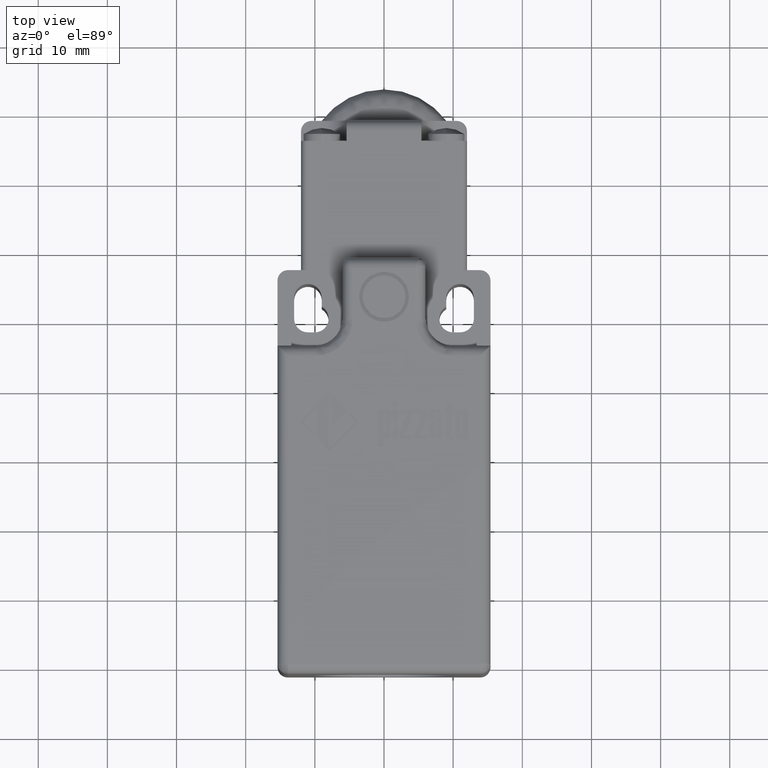
[diagram: clean part render]
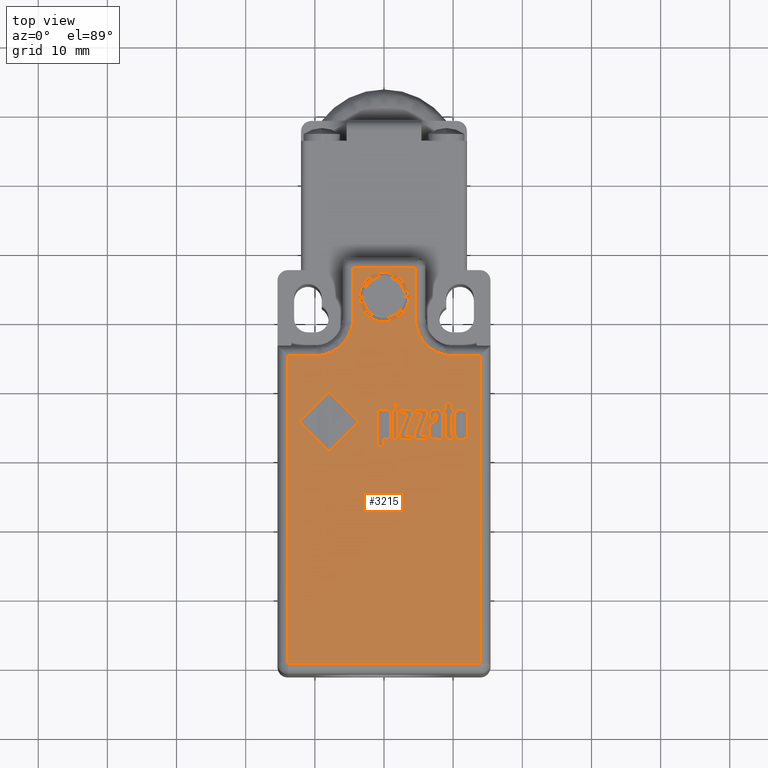
[diagram: same view with one face highlighted and labeled with its STEP entity id]
A machine part, top view. The second image highlights one B-rep face of the part: STEP entity #3215.
In plain terms, the highlighted planar face has unit normal (0, 0, -1).
Its self-contained STEP definition (entity closure, byte-faithful):
#270=CARTESIAN_POINT('',(-3.600000000000000,2.999999999999996,18.600000000000001));
#271=VERTEX_POINT('',#270);
#278=CARTESIAN_POINT('',(3.600000000000000,2.999999999999996,18.600000000000001));
#279=VERTEX_POINT('',#278);
#280=CARTESIAN_POINT('',(0.0,2.999999999999996,18.600000000000001));
#281=DIRECTION('',(0.0,0.0,1.0));
#282=DIRECTION('',(1.0,0.0,0.0));
#283=AXIS2_PLACEMENT_3D('',#280,#281,#282);
#284=CIRCLE('',#283,3.600000000000000);
#285=EDGE_CURVE('',#271,#279,#284,.T.);
#2434=CARTESIAN_POINT('',(15.290000000000006,-52.860000000000014,18.600000000000001));
#2435=DIRECTION('',(0.0,0.0,-1.0));
#2436=DIRECTION('',(-1.0,0.0,0.0));
#2437=AXIS2_PLACEMENT_3D('',#2434,#2435,#2436);
#2438=PLANE('',#2437);
#2439=CARTESIAN_POINT('',(4.500000000000006,7.199999999999998,18.599999999999998));
#2440=VERTEX_POINT('',#2439);
#2441=CARTESIAN_POINT('',(4.500000000000005,3.469447E-015,18.600000000000001));
#2442=VERTEX_POINT('',#2441);
#2443=CARTESIAN_POINT('',(4.500000000000005,7.199999999999996,18.600000000000001));
#2444=DIRECTION('',(0.0,-1.0,0.0));
#2445=VECTOR('',#2444,7.199999999999992);
#2446=LINE('',#2443,#2445);
#2447=EDGE_CURVE('',#2440,#2442,#2446,.T.);
#2448=ORIENTED_EDGE('',*,*,#2447,.F.);
#2449=CARTESIAN_POINT('',(-4.500000000000006,7.199999999999998,18.599999999999998));
#2450=VERTEX_POINT('',#2449);
#2451=CARTESIAN_POINT('',(4.500000000000009,7.200000000000005,18.600000000000001));
#2452=DIRECTION('',(-1.0,0.0,0.0));
#2453=VECTOR('',#2452,9.000000000000014);
#2454=LINE('',#2451,#2453);
#2455=EDGE_CURVE('',#2440,#2450,#2454,.T.);
#2456=ORIENTED_EDGE('',*,*,#2455,.T.);
#2457=CARTESIAN_POINT('',(-4.500000000000005,3.469447E-015,18.600000000000001));
#2458=VERTEX_POINT('',#2457);
#2459=CARTESIAN_POINT('',(-4.500000000000005,7.199999999999996,18.600000000000001));
#2460=DIRECTION('',(0.0,-1.0,0.0));
#2461=VECTOR('',#2460,7.199999999999992);
#2462=LINE('',#2459,#2461);
#2463=EDGE_CURVE('',#2450,#2458,#2462,.T.);
#2464=ORIENTED_EDGE('',*,*,#2463,.T.);
#2465=CARTESIAN_POINT('',(-10.000000000000007,-5.500000000000000,18.600000000000001));
#2466=VERTEX_POINT('',#2465);
#2467=CARTESIAN_POINT('',(-10.000000000000007,3.469447E-015,18.600000000000001));
#2468=DIRECTION('',(0.0,0.0,-1.0));
#2469=DIRECTION('',(-1.0,0.0,0.0));
#2470=AXIS2_PLACEMENT_3D('',#2467,#2468,#2469);
#2471=CIRCLE('',#2470,5.500000000000004);
#2472=EDGE_CURVE('',#2458,#2466,#2471,.T.);
#2473=ORIENTED_EDGE('',*,*,#2472,.T.);
#2474=CARTESIAN_POINT('',(-13.900000000000006,-5.500000000000000,18.600000000000001));
#2475=VERTEX_POINT('',#2474);
#2476=CARTESIAN_POINT('',(-10.000000000000007,-5.499999999999998,18.600000000000001));
#2477=DIRECTION('',(-1.0,0.0,0.0));
#2478=VECTOR('',#2477,3.899999999999999);
#2479=LINE('',#2476,#2478);
#2480=EDGE_CURVE('',#2466,#2475,#2479,.T.);
#2481=ORIENTED_EDGE('',*,*,#2480,.T.);
#2482=CARTESIAN_POINT('',(-13.900000000000006,-50.000000000000014,18.600000000000001));
#2483=VERTEX_POINT('',#2482);
#2484=CARTESIAN_POINT('',(-13.900000000000006,-5.500000000000000,18.600000000000001));
#2485=DIRECTION('',(0.0,-1.0,0.0));
#2486=VECTOR('',#2485,44.500000000000014);
#2487=LINE('',#2484,#2486);
#2488=EDGE_CURVE('',#2475,#2483,#2487,.T.);
#2489=ORIENTED_EDGE('',*,*,#2488,.T.);
#2490=CARTESIAN_POINT('',(13.900000000000006,-50.000000000000014,18.600000000000001));
#2491=VERTEX_POINT('',#2490);
#2492=CARTESIAN_POINT('',(-13.900000000000006,-50.000000000000014,18.600000000000001));
#2493=DIRECTION('',(1.0,0.0,0.0));
#2494=VECTOR('',#2493,27.800000000000011);
#2495=LINE('',#2492,#2494);
#2496=EDGE_CURVE('',#2483,#2491,#2495,.T.);
#2497=ORIENTED_EDGE('',*,*,#2496,.T.);
#2498=CARTESIAN_POINT('',(13.900000000000006,-5.500000000000000,18.600000000000001));
#2499=VERTEX_POINT('',#2498);
#2500=CARTESIAN_POINT('',(13.900000000000006,-5.500000000000000,18.600000000000001));
#2501=DIRECTION('',(0.0,-1.0,0.0));
#2502=VECTOR('',#2501,44.500000000000014);
#2503=LINE('',#2500,#2502);
#2504=EDGE_CURVE('',#2499,#2491,#2503,.T.);
#2505=ORIENTED_EDGE('',*,*,#2504,.F.);
#2506=CARTESIAN_POINT('',(10.000000000000007,-5.500000000000000,18.600000000000001));
#2507=VERTEX_POINT('',#2506);
#2508=CARTESIAN_POINT('',(10.000000000000007,-5.499999999999998,18.600000000000001));
#2509=DIRECTION('',(1.0,0.0,0.0));
#2510=VECTOR('',#2509,3.899999999999999);
#2511=LINE('',#2508,#2510);
#2512=EDGE_CURVE('',#2507,#2499,#2511,.T.);
#2513=ORIENTED_EDGE('',*,*,#2512,.F.);
#2514=CARTESIAN_POINT('',(10.000000000000007,3.469447E-015,18.600000000000001));
#2515=DIRECTION('',(0.0,0.0,1.0));
#2516=DIRECTION('',(1.0,0.0,0.0));
#2517=AXIS2_PLACEMENT_3D('',#2514,#2515,#2516);
#2518=CIRCLE('',#2517,5.500000000000004);
#2519=EDGE_CURVE('',#2442,#2507,#2518,.T.);
#2520=ORIENTED_EDGE('',*,*,#2519,.F.);
#2521=EDGE_LOOP('',(#2448,#2456,#2464,#2473,#2481,#2489,#2497,#2505,#2513,#2520));
#2522=FACE_OUTER_BOUND('',#2521,.T.);
#2523=CARTESIAN_POINT('',(8.928889482346673,-13.275073119551740,18.600000000000001));
#2524=VERTEX_POINT('',#2523);
#2525=CARTESIAN_POINT('',(8.645105698562890,-13.275073119551740,18.600000000000001));
#2526=VERTEX_POINT('',#2525);
#2527=CARTESIAN_POINT('',(8.928889482346673,-13.275073119551740,18.600000000000001));
#2528=DIRECTION('',(-1.0,0.0,0.0));
#2529=VECTOR('',#2528,0.283783783783782);
#2530=LINE('',#2527,#2529);
#2531=EDGE_CURVE('',#2524,#2526,#2530,.T.);
#2532=ORIENTED_EDGE('',*,*,#2531,.F.);
#2533=CARTESIAN_POINT('',(8.928889482346673,-12.221019065497680,18.600000000000001));
#2534=VERTEX_POINT('',#2533);
#2535=CARTESIAN_POINT('',(8.928889482346673,-12.221019065497680,18.600000000000001));
#2536=DIRECTION('',(0.0,-1.0,0.0));
#2537=VECTOR('',#2536,1.054054054054060);
#2538=LINE('',#2535,#2537);
#2539=EDGE_CURVE('',#2534,#2524,#2538,.T.);
#2540=ORIENTED_EDGE('',*,*,#2539,.F.);
#2541=CARTESIAN_POINT('',(9.739700293157492,-12.221019065497680,18.600000000000001));
#2542=VERTEX_POINT('',#2541);
#2543=CARTESIAN_POINT('',(9.739700293157492,-12.221019065497680,18.600000000000001));
#2544=DIRECTION('',(-1.0,0.0,0.0));
#2545=VECTOR('',#2544,0.810810810810819);
#2546=LINE('',#2543,#2545);
#2547=EDGE_CURVE('',#2542,#2534,#2546,.T.);
#2548=ORIENTED_EDGE('',*,*,#2547,.F.);
#2549=CARTESIAN_POINT('',(9.739700293157487,-13.275073119551740,18.600000000000001));
#2550=VERTEX_POINT('',#2549);
#2551=CARTESIAN_POINT('',(9.739700293157492,-13.275073119551740,18.600000000000001));
#2552=DIRECTION('',(0.0,1.0,0.0));
#2553=VECTOR('',#2552,1.054054054054060);
#2554=LINE('',#2551,#2553);
#2555=EDGE_CURVE('',#2550,#2542,#2554,.T.);
#2556=ORIENTED_EDGE('',*,*,#2555,.F.);
#2557=CARTESIAN_POINT('',(10.023484076941276,-13.275073119551740,18.600000000000001));
#2558=VERTEX_POINT('',#2557);
#2559=CARTESIAN_POINT('',(10.023484076941276,-13.275073119551740,18.600000000000001));
#2560=DIRECTION('',(-1.0,0.0,0.0));
#2561=VECTOR('',#2560,0.283783783783790);
#2562=LINE('',#2559,#2561);
#2563=EDGE_CURVE('',#2558,#2550,#2562,.T.);
#2564=ORIENTED_EDGE('',*,*,#2563,.F.);
#2565=CARTESIAN_POINT('',(10.023484076941276,-13.923721768200386,18.600000000000001));
#2566=VERTEX_POINT('',#2565);
#2567=CARTESIAN_POINT('',(10.023484076941276,-13.923721768200386,18.600000000000001));
#2568=DIRECTION('',(0.0,1.0,0.0));
#2569=VECTOR('',#2568,0.648648648648646);
#2570=LINE('',#2567,#2569);
#2571=EDGE_CURVE('',#2566,#2558,#2570,.T.);
#2572=ORIENTED_EDGE('',*,*,#2571,.F.);
#2573=CARTESIAN_POINT('',(9.739700293157492,-13.923721768200386,18.600000000000001));
#2574=VERTEX_POINT('',#2573);
#2575=CARTESIAN_POINT('',(9.739700293157492,-13.923721768200386,18.600000000000001));
#2576=DIRECTION('',(1.0,0.0,0.0));
#2577=VECTOR('',#2576,0.283783783783784);
#2578=LINE('',#2575,#2577);
#2579=EDGE_CURVE('',#2574,#2566,#2578,.T.);
#2580=ORIENTED_EDGE('',*,*,#2579,.F.);
#2581=CARTESIAN_POINT('',(9.739700293157492,-17.004802849281468,18.600000000000001));
#2582=VERTEX_POINT('',#2581);
#2583=CARTESIAN_POINT('',(9.739700293157492,-17.004802849281468,18.600000000000001));
#2584=DIRECTION('',(0.0,1.0,0.0));
#2585=VECTOR('',#2584,3.081081081081083);
#2586=LINE('',#2583,#2585);
#2587=EDGE_CURVE('',#2582,#2574,#2586,.T.);
#2588=ORIENTED_EDGE('',*,*,#2587,.F.);
#2589=CARTESIAN_POINT('',(10.023484076941276,-17.004802849281468,18.600000000000001));
#2590=VERTEX_POINT('',#2589);
#2591=CARTESIAN_POINT('',(10.023484076941276,-17.004802849281468,18.600000000000001));
#2592=DIRECTION('',(-1.0,0.0,0.0));
#2593=VECTOR('',#2592,0.283783783783784);
#2594=LINE('',#2591,#2593);
#2595=EDGE_CURVE('',#2590,#2582,#2594,.T.);
#2596=ORIENTED_EDGE('',*,*,#2595,.F.);
#2597=CARTESIAN_POINT('',(10.023484076941276,-17.572370416848987,18.600000000000001));
#2598=VERTEX_POINT('',#2597);
#2599=CARTESIAN_POINT('',(10.023484076941276,-17.572370416848987,18.600000000000001));
#2600=DIRECTION('',(0.0,1.0,0.0));
#2601=VECTOR('',#2600,0.567567567567519);
#2602=LINE('',#2599,#2601);
#2603=EDGE_CURVE('',#2598,#2590,#2602,.T.);
#2604=ORIENTED_EDGE('',*,*,#2603,.F.);
#2605=CARTESIAN_POINT('',(9.415375968833171,-17.572370416849001,18.600000000000001));
#2606=VERTEX_POINT('',#2605);
#2607=CARTESIAN_POINT('',(9.415375968833171,-17.572370416849001,18.600000000000001));
#2608=DIRECTION('',(1.0,0.0,0.0));
#2609=VECTOR('',#2608,0.608108108108105);
#2610=LINE('',#2607,#2609);
#2611=EDGE_CURVE('',#2606,#2598,#2610,.T.);
#2612=ORIENTED_EDGE('',*,*,#2611,.F.);
#2613=CARTESIAN_POINT('',(8.928889482346682,-17.085883930362513,18.600000000000001));
#2614=VERTEX_POINT('',#2613);
#2615=CARTESIAN_POINT('',(9.415375968833166,-17.085883930362534,18.600000000000001));
#2616=DIRECTION('',(0.0,0.0,1.0));
#2617=DIRECTION('',(1.0,0.0,0.0));
#2618=AXIS2_PLACEMENT_3D('',#2615,#2616,#2617);
#2619=CIRCLE('',#2618,0.486486486486479);
#2620=EDGE_CURVE('',#2614,#2606,#2619,.T.);
#2621=ORIENTED_EDGE('',*,*,#2620,.F.);
#2622=CARTESIAN_POINT('',(8.928889482346673,-13.923721768200386,18.600000000000001));
#2623=VERTEX_POINT('',#2622);
#2624=CARTESIAN_POINT('',(8.928889482346673,-13.923721768200386,18.600000000000001));
#2625=DIRECTION('',(0.0,-1.0,0.0));
#2626=VECTOR('',#2625,3.162162162162128);
#2627=LINE('',#2624,#2626);
#2628=EDGE_CURVE('',#2623,#2614,#2627,.T.);
#2629=ORIENTED_EDGE('',*,*,#2628,.F.);
#2630=CARTESIAN_POINT('',(8.645105698562890,-13.923721768200386,18.600000000000001));
#2631=VERTEX_POINT('',#2630);
#2632=CARTESIAN_POINT('',(8.645105698562890,-13.923721768200386,18.600000000000001));
#2633=DIRECTION('',(1.0,0.0,0.0));
#2634=VECTOR('',#2633,0.283783783783782);
#2635=LINE('',#2632,#2634);
#2636=EDGE_CURVE('',#2631,#2623,#2635,.T.);
#2637=ORIENTED_EDGE('',*,*,#2636,.F.);
#2638=CARTESIAN_POINT('',(8.645105698562890,-13.275073119551740,18.600000000000001));
#2639=DIRECTION('',(0.0,-1.0,0.0));
#2640=VECTOR('',#2639,0.648648648648646);
#2641=LINE('',#2638,#2640);
#2642=EDGE_CURVE('',#2526,#2631,#2641,.T.);
#2643=ORIENTED_EDGE('',*,*,#2642,.F.);
#2644=EDGE_LOOP('',(#2532,#2540,#2548,#2556,#2564,#2572,#2580,#2588,#2596,#2604,#2612,#2621,#2629,#2637,#2643));
#2645=FACE_BOUND('',#2644,.T.);
#2646=CARTESIAN_POINT('',(7.537251273740965,-17.506510332938422,18.600000000000001));
#2647=VERTEX_POINT('',#2646);
#2648=CARTESIAN_POINT('',(7.639700293157486,-17.572370416849044,18.600000000000001));
#2649=VERTEX_POINT('',#2648);
#2650=CARTESIAN_POINT('',(7.567306470763668,-17.572370416849044,18.600000000000001));
#2651=DIRECTION('',(0.0,0.0,-1.0));
#2652=DIRECTION('',(1.0,0.0,0.0));
#2653=AXIS2_PLACEMENT_3D('',#2650,#2651,#2652);
#2654=CIRCLE('',#2653,0.072393822393818);
#2655=EDGE_CURVE('',#2647,#2649,#2654,.T.);
#2656=ORIENTED_EDGE('',*,*,#2655,.F.);
#2657=CARTESIAN_POINT('',(6.504565158022350,-16.842640687119324,18.600000000000001));
#2658=VERTEX_POINT('',#2657);
#2659=CARTESIAN_POINT('',(7.234294887752083,-16.842640687119324,18.600000000000001));
#2660=DIRECTION('',(0.0,0.0,1.0));
#2661=DIRECTION('',(1.0,0.0,0.0));
#2662=AXIS2_PLACEMENT_3D('',#2659,#2660,#2661);
#2663=CIRCLE('',#2662,0.729729729729729);
#2664=EDGE_CURVE('',#2658,#2647,#2663,.T.);
#2665=ORIENTED_EDGE('',*,*,#2664,.F.);
#2666=CARTESIAN_POINT('',(6.504565158022350,-15.607932052762930,18.600000000000001));
#2667=VERTEX_POINT('',#2666);
#2668=CARTESIAN_POINT('',(6.504565158022350,-15.607932052762930,18.600000000000001));
#2669=DIRECTION('',(0.0,-1.0,0.0));
#2670=VECTOR('',#2669,1.234708634356394);
#2671=LINE('',#2668,#2670);
#2672=EDGE_CURVE('',#2667,#2658,#2671,.T.);
#2673=ORIENTED_EDGE('',*,*,#2672,.F.);
#2674=CARTESIAN_POINT('',(6.555495647975434,-15.508964468426978,18.600000000000001));
#2675=VERTEX_POINT('',#2674);
#2676=CARTESIAN_POINT('',(6.626186779643975,-15.607932052762930,18.600000000000001));
#2677=DIRECTION('',(0.0,0.0,1.0));
#2678=DIRECTION('',(1.0,0.0,0.0));
#2679=AXIS2_PLACEMENT_3D('',#2676,#2677,#2678);
#2680=CIRCLE('',#2679,0.121621621621622);
#2681=EDGE_CURVE('',#2675,#2667,#2680,.T.);
#2682=ORIENTED_EDGE('',*,*,#2681,.F.);
#2683=CARTESIAN_POINT('',(7.639700293157486,-14.734532579011198,18.600000000000001));
#2684=VERTEX_POINT('',#2683);
#2685=CARTESIAN_POINT('',(7.639700293157484,-14.734532579011194,18.600000000000001));
#2686=DIRECTION('',(-0.813733471206723,-0.581238193719113,0.0));
#2687=VECTOR('',#2686,1.332383001984953);
#2688=LINE('',#2685,#2687);
#2689=EDGE_CURVE('',#2684,#2675,#2688,.T.);
#2690=ORIENTED_EDGE('',*,*,#2689,.F.);
#2691=CARTESIAN_POINT('',(7.639700293157486,-14.029127173605790,18.600000000000001));
#2692=VERTEX_POINT('',#2691);
#2693=CARTESIAN_POINT('',(7.639700293157486,-14.029127173605790,18.600000000000001));
#2694=DIRECTION('',(0.0,-1.0,0.0));
#2695=VECTOR('',#2694,0.705405405405408);
#2696=LINE('',#2693,#2695);
#2697=EDGE_CURVE('',#2692,#2684,#2696,.T.);
#2698=ORIENTED_EDGE('',*,*,#2697,.F.);
#2699=CARTESIAN_POINT('',(7.518078671535866,-13.907505551984169,18.600000000000001));
#2700=VERTEX_POINT('',#2699);
#2701=CARTESIAN_POINT('',(7.518078671535866,-14.029127173605790,18.600000000000001));
#2702=DIRECTION('',(0.0,0.0,-1.0));
#2703=DIRECTION('',(1.0,0.0,0.0));
#2704=AXIS2_PLACEMENT_3D('',#2701,#2702,#2703);
#2705=CIRCLE('',#2704,0.121621621621622);
#2706=EDGE_CURVE('',#2700,#2692,#2705,.T.);
#2707=ORIENTED_EDGE('',*,*,#2706,.F.);
#2708=CARTESIAN_POINT('',(7.436997590454785,-13.907505551984169,18.600000000000001));
#2709=VERTEX_POINT('',#2708);
#2710=CARTESIAN_POINT('',(7.436997590454785,-13.907505551984169,18.600000000000001));
#2711=DIRECTION('',(1.0,0.0,0.0));
#2712=VECTOR('',#2711,0.081081081081082);
#2713=LINE('',#2710,#2712);
#2714=EDGE_CURVE('',#2709,#2700,#2713,.T.);
#2715=ORIENTED_EDGE('',*,*,#2714,.F.);
#2716=CARTESIAN_POINT('',(7.315375968833163,-14.029127173605790,18.600000000000001));
#2717=VERTEX_POINT('',#2716);
#2718=CARTESIAN_POINT('',(7.436997590454785,-14.029127173605790,18.600000000000001));
#2719=DIRECTION('',(0.0,0.0,-1.0));
#2720=DIRECTION('',(1.0,0.0,0.0));
#2721=AXIS2_PLACEMENT_3D('',#2718,#2719,#2720);
#2722=CIRCLE('',#2721,0.121621621621621);
#2723=EDGE_CURVE('',#2717,#2709,#2722,.T.);
#2724=ORIENTED_EDGE('',*,*,#2723,.F.);
#2725=CARTESIAN_POINT('',(7.315375968833163,-14.734532579011198,18.600000000000001));
#2726=VERTEX_POINT('',#2725);
#2727=CARTESIAN_POINT('',(7.315375968833163,-14.734532579011198,18.600000000000001));
#2728=DIRECTION('',(0.0,1.0,0.0));
#2729=VECTOR('',#2728,0.705405405405408);
#2730=LINE('',#2727,#2729);
#2731=EDGE_CURVE('',#2726,#2717,#2730,.T.);
#2732=ORIENTED_EDGE('',*,*,#2731,.F.);
#2733=CARTESIAN_POINT('',(6.504565158022350,-14.734532579011198,18.600000000000001));
#2734=VERTEX_POINT('',#2733);
#2735=CARTESIAN_POINT('',(6.504565158022350,-14.734532579011198,18.600000000000001));
#2736=DIRECTION('',(1.0,0.0,0.0));
#2737=VECTOR('',#2736,0.810810810810813);
#2738=LINE('',#2735,#2737);
#2739=EDGE_CURVE('',#2734,#2726,#2738,.T.);
#2740=ORIENTED_EDGE('',*,*,#2739,.F.);
#2741=CARTESIAN_POINT('',(6.504565158022350,-14.004802849281457,18.600000000000001));
#2742=VERTEX_POINT('',#2741);
#2743=CARTESIAN_POINT('',(6.504565158022350,-14.004802849281457,18.600000000000001));
#2744=DIRECTION('',(0.0,-1.0,0.0));
#2745=VECTOR('',#2744,0.729729729729740);
#2746=LINE('',#2743,#2745);
#2747=EDGE_CURVE('',#2742,#2734,#2746,.T.);
#2748=ORIENTED_EDGE('',*,*,#2747,.F.);
#2749=CARTESIAN_POINT('',(7.234294887752081,-13.275073119551729,18.600000000000001));
#2750=VERTEX_POINT('',#2749);
#2751=CARTESIAN_POINT('',(7.234294887752081,-14.004802849281457,18.600000000000001));
#2752=DIRECTION('',(0.0,0.0,1.0));
#2753=DIRECTION('',(1.0,0.0,0.0));
#2754=AXIS2_PLACEMENT_3D('',#2751,#2752,#2753);
#2755=CIRCLE('',#2754,0.729729729729728);
#2756=EDGE_CURVE('',#2750,#2742,#2755,.T.);
#2757=ORIENTED_EDGE('',*,*,#2756,.F.);
#2758=CARTESIAN_POINT('',(7.720781374238568,-13.275073119551740,18.600000000000001));
#2759=VERTEX_POINT('',#2758);
#2760=CARTESIAN_POINT('',(7.720781374238568,-13.275073119551740,18.600000000000001));
#2761=DIRECTION('',(-1.0,0.0,0.0));
#2762=VECTOR('',#2761,0.486486486486487);
#2763=LINE('',#2760,#2762);
#2764=EDGE_CURVE('',#2759,#2750,#2763,.T.);
#2765=ORIENTED_EDGE('',*,*,#2764,.F.);
#2766=CARTESIAN_POINT('',(8.450511103968296,-14.004802849281457,18.600000000000001));
#2767=VERTEX_POINT('',#2766);
#2768=CARTESIAN_POINT('',(7.720781374238568,-14.004802849281457,18.600000000000001));
#2769=DIRECTION('',(0.0,0.0,1.0));
#2770=DIRECTION('',(1.0,0.0,0.0));
#2771=AXIS2_PLACEMENT_3D('',#2768,#2769,#2770);
#2772=CIRCLE('',#2771,0.729729729729727);
#2773=EDGE_CURVE('',#2767,#2759,#2772,.T.);
#2774=ORIENTED_EDGE('',*,*,#2773,.F.);
#2775=CARTESIAN_POINT('',(8.450511103968296,-17.572370416849026,18.600000000000001));
#2776=VERTEX_POINT('',#2775);
#2777=CARTESIAN_POINT('',(8.450511103968296,-17.572370416849026,18.600000000000001));
#2778=DIRECTION('',(0.0,1.0,0.0));
#2779=VECTOR('',#2778,3.567567567567568);
#2780=LINE('',#2777,#2779);
#2781=EDGE_CURVE('',#2776,#2767,#2780,.T.);
#2782=ORIENTED_EDGE('',*,*,#2781,.F.);
#2783=CARTESIAN_POINT('',(7.639700293157486,-17.572370416849044,18.600000000000001));
#2784=DIRECTION('',(1.0,0.0,0.0));
#2785=VECTOR('',#2784,0.810810810810810);
#2786=LINE('',#2783,#2785);
#2787=EDGE_CURVE('',#2649,#2776,#2786,.T.);
#2788=ORIENTED_EDGE('',*,*,#2787,.F.);
#2789=EDGE_LOOP('',(#2656,#2665,#2673,#2682,#2690,#2698,#2707,#2715,#2724,#2732,#2740,#2748,#2757,#2765,#2774,#2782,#2788));
#2790=FACE_BOUND('',#2789,.T.);
#2791=CARTESIAN_POINT('',(5.487678002932945,-13.842640687119303,18.600000000000001));
#2792=VERTEX_POINT('',#2791);
#2793=CARTESIAN_POINT('',(4.364024617481801,-16.891289335767947,18.600000000000001));
#2794=VERTEX_POINT('',#2793);
#2795=CARTESIAN_POINT('',(5.487678002932945,-13.842640687119303,18.600000000000001));
#2796=DIRECTION('',(-0.345831919994259,-0.938296479324677,0.0));
#2797=VECTOR('',#2796,3.249131501423576);
#2798=LINE('',#2795,#2797);
#2799=EDGE_CURVE('',#2792,#2794,#2798,.T.);
#2800=ORIENTED_EDGE('',*,*,#2799,.F.);
#2801=CARTESIAN_POINT('',(4.364024617481804,-13.842640687119303,18.600000000000001));
#2802=VERTEX_POINT('',#2801);
#2803=CARTESIAN_POINT('',(4.364024617481804,-13.842640687119303,18.600000000000001));
#2804=DIRECTION('',(1.0,0.0,0.0));
#2805=VECTOR('',#2804,1.123653385451141);
#2806=LINE('',#2803,#2805);
#2807=EDGE_CURVE('',#2802,#2792,#2806,.T.);
#2808=ORIENTED_EDGE('',*,*,#2807,.F.);
#2809=CARTESIAN_POINT('',(4.364024617481801,-13.275073119551740,18.600000000000001));
#2810=VERTEX_POINT('',#2809);
#2811=CARTESIAN_POINT('',(4.364024617481804,-13.275073119551740,18.600000000000001));
#2812=DIRECTION('',(0.0,-1.0,0.0));
#2813=VECTOR('',#2812,0.567567567567563);
#2814=LINE('',#2811,#2813);
#2815=EDGE_CURVE('',#2810,#2802,#2814,.T.);
#2816=ORIENTED_EDGE('',*,*,#2815,.F.);
#2817=CARTESIAN_POINT('',(6.309970563427747,-13.275073119551740,18.600000000000001));
#2818=VERTEX_POINT('',#2817);
#2819=CARTESIAN_POINT('',(6.309970563427747,-13.275073119551740,18.600000000000001));
#2820=DIRECTION('',(-1.0,0.0,0.0));
#2821=VECTOR('',#2820,1.945945945945946);
#2822=LINE('',#2819,#2821);
#2823=EDGE_CURVE('',#2818,#2810,#2822,.T.);
#2824=ORIENTED_EDGE('',*,*,#2823,.F.);
#2825=CARTESIAN_POINT('',(6.309970563427758,-13.956154200632820,18.600000000000001));
#2826=VERTEX_POINT('',#2825);
#2827=CARTESIAN_POINT('',(6.309970563427747,-13.956154200632820,18.600000000000001));
#2828=DIRECTION('',(0.0,1.0,0.0));
#2829=VECTOR('',#2828,0.681081081081080);
#2830=LINE('',#2827,#2829);
#2831=EDGE_CURVE('',#2826,#2818,#2830,.T.);
#2832=ORIENTED_EDGE('',*,*,#2831,.F.);
#2833=CARTESIAN_POINT('',(5.186317177976605,-17.004802849281468,18.600000000000001));
#2834=VERTEX_POINT('',#2833);
#2835=CARTESIAN_POINT('',(5.186317177976606,-17.004802849281468,18.600000000000001));
#2836=DIRECTION('',(0.345831919994261,0.938296479324677,0.0));
#2837=VECTOR('',#2836,3.249131501423582);
#2838=LINE('',#2835,#2837);
#2839=EDGE_CURVE('',#2834,#2826,#2838,.T.);
#2840=ORIENTED_EDGE('',*,*,#2839,.F.);
#2841=CARTESIAN_POINT('',(6.309970563427742,-17.004802849281468,18.600000000000001));
#2842=VERTEX_POINT('',#2841);
#2843=CARTESIAN_POINT('',(6.309970563427742,-17.004802849281468,18.600000000000001));
#2844=DIRECTION('',(-1.0,0.0,0.0));
#2845=VECTOR('',#2844,1.123653385451137);
#2846=LINE('',#2843,#2845);
#2847=EDGE_CURVE('',#2842,#2834,#2846,.T.);
#2848=ORIENTED_EDGE('',*,*,#2847,.F.);
#2849=CARTESIAN_POINT('',(6.309970563427742,-17.572370416849044,18.600000000000001));
#2850=VERTEX_POINT('',#2849);
#2851=CARTESIAN_POINT('',(6.309970563427742,-17.572370416849044,18.600000000000001));
#2852=DIRECTION('',(0.0,1.0,0.0));
#2853=VECTOR('',#2852,0.567567567567576);
#2854=LINE('',#2851,#2853);
#2855=EDGE_CURVE('',#2850,#2842,#2854,.T.);
#2856=ORIENTED_EDGE('',*,*,#2855,.F.);
#2857=CARTESIAN_POINT('',(4.364024617481801,-17.572370416849040,18.600000000000001));
#2858=VERTEX_POINT('',#2857);
#2859=CARTESIAN_POINT('',(4.364024617481801,-17.572370416849044,18.600000000000001));
#2860=DIRECTION('',(1.0,0.0,0.0));
#2861=VECTOR('',#2860,1.945945945945940);
#2862=LINE('',#2859,#2861);
#2863=EDGE_CURVE('',#2858,#2850,#2862,.T.);
#2864=ORIENTED_EDGE('',*,*,#2863,.F.);
#2865=CARTESIAN_POINT('',(4.364024617481801,-16.891289335767947,18.600000000000001));
#2866=DIRECTION('',(0.0,-1.0,0.0));
#2867=VECTOR('',#2866,0.681081081081093);
#2868=LINE('',#2865,#2867);
#2869=EDGE_CURVE('',#2794,#2858,#2868,.T.);
#2870=ORIENTED_EDGE('',*,*,#2869,.F.);
#2871=EDGE_LOOP('',(#2800,#2808,#2816,#2824,#2832,#2840,#2848,#2856,#2864,#2870));
#2872=FACE_BOUND('',#2871,.T.);
#2873=CARTESIAN_POINT('',(2.223484076941264,-13.842640687119303,18.600000000000001));
#2874=VERTEX_POINT('',#2873);
#2875=CARTESIAN_POINT('',(3.347137462392411,-13.842640687119303,18.600000000000001));
#2876=VERTEX_POINT('',#2875);
#2877=CARTESIAN_POINT('',(2.223484076941264,-13.842640687119303,18.600000000000001));
#2878=DIRECTION('',(1.0,0.0,0.0));
#2879=VECTOR('',#2878,1.123653385451147);
#2880=LINE('',#2877,#2879);
#2881=EDGE_CURVE('',#2874,#2876,#2880,.T.);
#2882=ORIENTED_EDGE('',*,*,#2881,.F.);
#2883=CARTESIAN_POINT('',(2.223484076941261,-13.275073119551740,18.600000000000001));
#2884=VERTEX_POINT('',#2883);
#2885=CARTESIAN_POINT('',(2.223484076941261,-13.275073119551740,18.600000000000001));
#2886=DIRECTION('',(0.0,-1.0,0.0));
#2887=VECTOR('',#2886,0.567567567567563);
#2888=LINE('',#2885,#2887);
#2889=EDGE_CURVE('',#2884,#2874,#2888,.T.);
#2890=ORIENTED_EDGE('',*,*,#2889,.F.);
#2891=CARTESIAN_POINT('',(4.169430022887211,-13.275073119551740,18.600000000000001));
#2892=VERTEX_POINT('',#2891);
#2893=CARTESIAN_POINT('',(4.169430022887211,-13.275073119551740,18.600000000000001));
#2894=DIRECTION('',(-1.0,0.0,0.0));
#2895=VECTOR('',#2894,1.945945945945949);
#2896=LINE('',#2893,#2895);
#2897=EDGE_CURVE('',#2892,#2884,#2896,.T.);
#2898=ORIENTED_EDGE('',*,*,#2897,.F.);
#2899=CARTESIAN_POINT('',(4.169430022887207,-13.956154200632819,18.600000000000001));
#2900=VERTEX_POINT('',#2899);
#2901=CARTESIAN_POINT('',(4.169430022887211,-13.956154200632819,18.600000000000001));
#2902=DIRECTION('',(0.0,1.0,0.0));
#2903=VECTOR('',#2902,0.681081081081079);
#2904=LINE('',#2901,#2903);
#2905=EDGE_CURVE('',#2900,#2892,#2904,.T.);
#2906=ORIENTED_EDGE('',*,*,#2905,.F.);
#2907=CARTESIAN_POINT('',(3.045776637436064,-17.004802849281468,18.600000000000001));
#2908=VERTEX_POINT('',#2907);
#2909=CARTESIAN_POINT('',(3.045776637436066,-17.004802849281468,18.600000000000001));
#2910=DIRECTION('',(0.345831919994257,0.938296479324678,0.0));
#2911=VECTOR('',#2910,3.249131501423580);
#2912=LINE('',#2909,#2911);
#2913=EDGE_CURVE('',#2908,#2900,#2912,.T.);
#2914=ORIENTED_EDGE('',*,*,#2913,.F.);
#2915=CARTESIAN_POINT('',(4.169430022887211,-17.004802849281468,18.600000000000001));
#2916=VERTEX_POINT('',#2915);
#2917=CARTESIAN_POINT('',(4.169430022887211,-17.004802849281468,18.600000000000001));
#2918=DIRECTION('',(-1.0,0.0,0.0));
#2919=VECTOR('',#2918,1.123653385451148);
#2920=LINE('',#2917,#2919);
#2921=EDGE_CURVE('',#2916,#2908,#2920,.T.);
#2922=ORIENTED_EDGE('',*,*,#2921,.F.);
#2923=CARTESIAN_POINT('',(4.169430022887207,-17.572370416849040,18.600000000000001));
#2924=VERTEX_POINT('',#2923);
#2925=CARTESIAN_POINT('',(4.169430022887211,-17.572370416849040,18.600000000000001));
#2926=DIRECTION('',(0.0,1.0,0.0));
#2927=VECTOR('',#2926,0.567567567567572);
#2928=LINE('',#2925,#2927);
#2929=EDGE_CURVE('',#2924,#2916,#2928,.T.);
#2930=ORIENTED_EDGE('',*,*,#2929,.F.);
#2931=CARTESIAN_POINT('',(2.223484076941261,-17.572370416849040,18.600000000000001));
#2932=VERTEX_POINT('',#2931);
#2933=CARTESIAN_POINT('',(2.223484076941261,-17.572370416849040,18.600000000000001));
#2934=DIRECTION('',(1.0,0.0,0.0));
#2935=VECTOR('',#2934,1.945945945945946);
#2936=LINE('',#2933,#2935);
#2937=EDGE_CURVE('',#2932,#2924,#2936,.T.);
#2938=ORIENTED_EDGE('',*,*,#2937,.F.);
#2939=CARTESIAN_POINT('',(2.223484076941261,-16.891289335767947,18.600000000000001));
#2940=VERTEX_POINT('',#2939);
#2941=CARTESIAN_POINT('',(2.223484076941261,-16.891289335767947,18.600000000000001));
#2942=DIRECTION('',(0.0,-1.0,0.0));
#2943=VECTOR('',#2942,0.681081081081093);
#2944=LINE('',#2941,#2943);
#2945=EDGE_CURVE('',#2940,#2932,#2944,.T.);
#2946=ORIENTED_EDGE('',*,*,#2945,.F.);
#2947=CARTESIAN_POINT('',(3.347137462392409,-13.842640687119303,18.600000000000001));
#2948=DIRECTION('',(-0.345831919994260,-0.938296479324677,0.0));
#2949=VECTOR('',#2948,3.249131501423577);
#2950=LINE('',#2947,#2949);
#2951=EDGE_CURVE('',#2876,#2940,#2950,.T.);
#2952=ORIENTED_EDGE('',*,*,#2951,.F.);
#2953=EDGE_LOOP('',(#2882,#2890,#2898,#2906,#2914,#2922,#2930,#2938,#2946,#2952));
#2954=FACE_BOUND('',#2953,.T.);
#2955=CARTESIAN_POINT('',(1.218078671535852,-17.572370416849044,18.600000000000001));
#2956=VERTEX_POINT('',#2955);
#2957=CARTESIAN_POINT('',(2.028889482346668,-17.572370416849044,18.600000000000001));
#2958=VERTEX_POINT('',#2957);
#2959=CARTESIAN_POINT('',(1.218078671535852,-17.572370416849044,18.600000000000001));
#2960=DIRECTION('',(1.0,0.0,0.0));
#2961=VECTOR('',#2960,0.810810810810816);
#2962=LINE('',#2959,#2961);
#2963=EDGE_CURVE('',#2956,#2958,#2962,.T.);
#2964=ORIENTED_EDGE('',*,*,#2963,.F.);
#2965=CARTESIAN_POINT('',(1.218078671535852,-13.275073119551740,18.600000000000001));
#2966=VERTEX_POINT('',#2965);
#2967=CARTESIAN_POINT('',(1.218078671535852,-13.275073119551740,18.600000000000001));
#2968=DIRECTION('',(0.0,-1.0,0.0));
#2969=VECTOR('',#2968,4.297297297297304);
#2970=LINE('',#2967,#2969);
#2971=EDGE_CURVE('',#2966,#2956,#2970,.T.);
#2972=ORIENTED_EDGE('',*,*,#2971,.F.);
#2973=CARTESIAN_POINT('',(2.028889482346664,-13.275073119551740,18.600000000000001));
#2974=VERTEX_POINT('',#2973);
#2975=CARTESIAN_POINT('',(2.028889482346664,-13.275073119551740,18.600000000000001));
#2976=DIRECTION('',(-1.0,0.0,0.0));
#2977=VECTOR('',#2976,0.810810810810813);
#2978=LINE('',#2975,#2977);
#2979=EDGE_CURVE('',#2974,#2966,#2978,.T.);
#2980=ORIENTED_EDGE('',*,*,#2979,.F.);
#2981=CARTESIAN_POINT('',(2.028889482346664,-17.572370416849044,18.600000000000001));
#2982=DIRECTION('',(0.0,1.0,0.0));
#2983=VECTOR('',#2982,4.297297297297305);
#2984=LINE('',#2981,#2983);
#2985=EDGE_CURVE('',#2958,#2974,#2984,.T.);
#2986=ORIENTED_EDGE('',*,*,#2985,.F.);
#2987=EDGE_LOOP('',(#2964,#2972,#2980,#2986));
#2988=FACE_BOUND('',#2987,.T.);
#2989=CARTESIAN_POINT('',(1.218078671535852,-13.031829876308493,18.600000000000001));
#2990=VERTEX_POINT('',#2989);
#2991=CARTESIAN_POINT('',(2.028889482346668,-13.031829876308493,18.600000000000001));
#2992=VERTEX_POINT('',#2991);
#2993=CARTESIAN_POINT('',(1.218078671535852,-13.031829876308493,18.600000000000001));
#2994=DIRECTION('',(1.0,0.0,0.0));
#2995=VECTOR('',#2994,0.810810810810816);
#2996=LINE('',#2993,#2995);
#2997=EDGE_CURVE('',#2990,#2992,#2996,.T.);
#2998=ORIENTED_EDGE('',*,*,#2997,.F.);
#2999=CARTESIAN_POINT('',(1.218078671535851,-12.221019065497680,18.600000000000001));
#3000=VERTEX_POINT('',#2999);
#3001=CARTESIAN_POINT('',(1.218078671535851,-12.221019065497680,18.600000000000001));
#3002=DIRECTION('',(0.0,-1.0,0.0));
#3003=VECTOR('',#3002,0.810810810810812);
#3004=LINE('',#3001,#3003);
#3005=EDGE_CURVE('',#3000,#2990,#3004,.T.);
#3006=ORIENTED_EDGE('',*,*,#3005,.F.);
#3007=CARTESIAN_POINT('',(2.028889482346668,-12.221019065497680,18.600000000000001));
#3008=VERTEX_POINT('',#3007);
#3009=CARTESIAN_POINT('',(2.028889482346668,-12.221019065497680,18.600000000000001));
#3010=DIRECTION('',(-1.0,0.0,0.0));
#3011=VECTOR('',#3010,0.810810810810817);
#3012=LINE('',#3009,#3011);
#3013=EDGE_CURVE('',#3008,#3000,#3012,.T.);
#3014=ORIENTED_EDGE('',*,*,#3013,.F.);
#3015=CARTESIAN_POINT('',(2.028889482346668,-13.031829876308493,18.600000000000001));
#3016=DIRECTION('',(0.0,1.0,0.0));
#3017=VECTOR('',#3016,0.810810810810812);
#3018=LINE('',#3015,#3017);
#3019=EDGE_CURVE('',#2992,#3008,#3018,.T.);
#3020=ORIENTED_EDGE('',*,*,#3019,.F.);
#3021=EDGE_LOOP('',(#2998,#3006,#3014,#3020));
#3022=FACE_BOUND('',#3021,.T.);
#3023=CARTESIAN_POINT('',(-0.922461869004687,-18.626424470903082,18.600000000000001));
#3024=VERTEX_POINT('',#3023);
#3025=CARTESIAN_POINT('',(-0.111651058193875,-18.626424470903082,18.600000000000001));
#3026=VERTEX_POINT('',#3025);
#3027=CARTESIAN_POINT('',(-0.922461869004687,-18.626424470903082,18.600000000000001));
#3028=DIRECTION('',(1.0,0.0,0.0));
#3029=VECTOR('',#3028,0.810810810810812);
#3030=LINE('',#3027,#3029);
#3031=EDGE_CURVE('',#3024,#3026,#3030,.T.);
#3032=ORIENTED_EDGE('',*,*,#3031,.F.);
#3033=CARTESIAN_POINT('',(-0.922461869004686,-13.275073119551740,18.600000000000001));
#3034=VERTEX_POINT('',#3033);
#3035=CARTESIAN_POINT('',(-0.922461869004686,-13.275073119551740,18.600000000000001));
#3036=DIRECTION('',(0.0,-1.0,0.0));
#3037=VECTOR('',#3036,5.351351351351342);
#3038=LINE('',#3035,#3037);
#3039=EDGE_CURVE('',#3034,#3024,#3038,.T.);
#3040=ORIENTED_EDGE('',*,*,#3039,.F.);
#3041=CARTESIAN_POINT('',(-0.111651058193880,-13.275073119551740,18.600000000000001));
#3042=VERTEX_POINT('',#3041);
#3043=CARTESIAN_POINT('',(-0.111651058193880,-13.275073119551740,18.600000000000001));
#3044=DIRECTION('',(-1.0,0.0,0.0));
#3045=VECTOR('',#3044,0.810810810810806);
#3046=LINE('',#3043,#3045);
#3047=EDGE_CURVE('',#3042,#3034,#3046,.T.);
#3048=ORIENTED_EDGE('',*,*,#3047,.F.);
#3049=CARTESIAN_POINT('',(-0.009202038777357,-13.340933203462356,18.600000000000001));
#3050=VERTEX_POINT('',#3049);
#3051=CARTESIAN_POINT('',(-0.039257235800063,-13.275073119551740,18.600000000000001));
#3052=DIRECTION('',(0.0,0.0,-1.0));
#3053=DIRECTION('',(1.0,0.0,0.0));
#3054=AXIS2_PLACEMENT_3D('',#3051,#3052,#3053);
#3055=CIRCLE('',#3054,0.072393822393817);
#3056=EDGE_CURVE('',#3050,#3042,#3055,.T.);
#3057=ORIENTED_EDGE('',*,*,#3056,.F.);
#3058=CARTESIAN_POINT('',(1.023484076941257,-14.004802849281456,18.600000000000001));
#3059=VERTEX_POINT('',#3058);
#3060=CARTESIAN_POINT('',(0.293754347211529,-14.004802849281456,18.600000000000001));
#3061=DIRECTION('',(0.0,0.0,1.0));
#3062=DIRECTION('',(1.0,0.0,0.0));
#3063=AXIS2_PLACEMENT_3D('',#3060,#3061,#3062);
#3064=CIRCLE('',#3063,0.729729729729729);
#3065=EDGE_CURVE('',#3059,#3050,#3064,.T.);
#3066=ORIENTED_EDGE('',*,*,#3065,.F.);
#3067=CARTESIAN_POINT('',(1.023484076941257,-16.842640687119310,18.600000000000001));
#3068=VERTEX_POINT('',#3067);
#3069=CARTESIAN_POINT('',(1.023484076941257,-16.842640687119310,18.600000000000001));
#3070=DIRECTION('',(0.0,1.0,0.0));
#3071=VECTOR('',#3070,2.837837837837855);
#3072=LINE('',#3069,#3071);
#3073=EDGE_CURVE('',#3068,#3059,#3072,.T.);
#3074=ORIENTED_EDGE('',*,*,#3073,.F.);
#3075=CARTESIAN_POINT('',(-0.009202038777369,-17.506510332938419,18.600000000000001));
#3076=VERTEX_POINT('',#3075);
#3077=CARTESIAN_POINT('',(0.293754347211529,-16.842640687119310,18.600000000000001));
#3078=DIRECTION('',(0.0,0.0,1.0));
#3079=DIRECTION('',(1.0,0.0,0.0));
#3080=AXIS2_PLACEMENT_3D('',#3077,#3078,#3079);
#3081=CIRCLE('',#3080,0.729729729729729);
#3082=EDGE_CURVE('',#3076,#3068,#3081,.T.);
#3083=ORIENTED_EDGE('',*,*,#3082,.F.);
#3084=CARTESIAN_POINT('',(-0.111651058193876,-17.572370416849040,18.600000000000001));
#3085=VERTEX_POINT('',#3084);
#3086=CARTESIAN_POINT('',(-0.039257235800073,-17.572370416849040,18.600000000000001));
#3087=DIRECTION('',(0.0,0.0,-1.0));
#3088=DIRECTION('',(1.0,0.0,0.0));
#3089=AXIS2_PLACEMENT_3D('',#3086,#3087,#3088);
#3090=CIRCLE('',#3089,0.072393822393815);
#3091=EDGE_CURVE('',#3085,#3076,#3090,.T.);
#3092=ORIENTED_EDGE('',*,*,#3091,.F.);
#3093=CARTESIAN_POINT('',(-0.111651058193876,-18.626424470903082,18.600000000000001));
#3094=DIRECTION('',(0.0,1.0,0.0));
#3095=VECTOR('',#3094,1.054054054054042);
#3096=LINE('',#3093,#3095);
#3097=EDGE_CURVE('',#3026,#3085,#3096,.T.);
#3098=ORIENTED_EDGE('',*,*,#3097,.F.);
#3099=EDGE_LOOP('',(#3032,#3040,#3048,#3057,#3066,#3074,#3083,#3092,#3098));
#3100=FACE_BOUND('',#3099,.T.);
#3101=CARTESIAN_POINT('',(-7.921859312880716,-10.757359312880721,18.600000000000001));
#3102=VERTEX_POINT('',#3101);
#3103=CARTESIAN_POINT('',(-12.164500000000002,-15.000000000000011,18.600000000000001));
#3104=VERTEX_POINT('',#3103);
#3105=CARTESIAN_POINT('',(-7.921859312880712,-10.757359312880725,18.600000000000001));
#3106=DIRECTION('',(-0.707106781186548,-0.707106781186547,0.0));
#3107=VECTOR('',#3106,6.000000000000004);
#3108=LINE('',#3105,#3107);
#3109=EDGE_CURVE('',#3102,#3104,#3108,.T.);
#3110=ORIENTED_EDGE('',*,*,#3109,.F.);
#3111=CARTESIAN_POINT('',(-3.679218625761443,-15.000000000000005,18.600000000000001));
#3112=VERTEX_POINT('',#3111);
#3113=CARTESIAN_POINT('',(-3.679218625761443,-15.000000000000005,18.600000000000001));
#3114=DIRECTION('',(-0.707106781186547,0.707106781186548,0.0));
#3115=VECTOR('',#3114,5.999999999999990);
#3116=LINE('',#3113,#3115);
#3117=EDGE_CURVE('',#3112,#3102,#3116,.T.);
#3118=ORIENTED_EDGE('',*,*,#3117,.F.);
#3119=CARTESIAN_POINT('',(-7.921859312880722,-19.242640687119280,18.600000000000001));
#3120=VERTEX_POINT('',#3119);
#3121=CARTESIAN_POINT('',(-7.921859312880722,-19.242640687119280,18.600000000000001));
#3122=DIRECTION('',(0.707106781186548,0.707106781186547,0.0));
#3123=VECTOR('',#3122,5.999999999999989);
#3124=LINE('',#3121,#3123);
#3125=EDGE_CURVE('',#3120,#3112,#3124,.T.);
#3126=ORIENTED_EDGE('',*,*,#3125,.F.);
#3127=CARTESIAN_POINT('',(-12.164500000000002,-15.000000000000011,18.600000000000001));
#3128=DIRECTION('',(0.707106781186549,-0.707106781186546,0.0));
#3129=VECTOR('',#3128,5.999999999999987);
#3130=LINE('',#3127,#3129);
#3131=EDGE_CURVE('',#3104,#3120,#3130,.T.);
#3132=ORIENTED_EDGE('',*,*,#3131,.F.);
#3133=EDGE_LOOP('',(#3110,#3118,#3126,#3132));
#3134=FACE_BOUND('',#3133,.T.);
#3135=CARTESIAN_POINT('',(10.218078671535872,-14.004802849281457,18.600000000000001));
#3136=VERTEX_POINT('',#3135);
#3137=CARTESIAN_POINT('',(10.218078671535872,-16.842640687119314,18.600000000000001));
#3138=VERTEX_POINT('',#3137);
#3139=CARTESIAN_POINT('',(10.218078671535872,-14.004802849281457,18.600000000000001));
#3140=DIRECTION('',(0.0,-1.0,0.0));
#3141=VECTOR('',#3140,2.837837837837856);
#3142=LINE('',#3139,#3141);
#3143=EDGE_CURVE('',#3136,#3138,#3142,.T.);
#3144=ORIENTED_EDGE('',*,*,#3143,.F.);
#3145=CARTESIAN_POINT('',(10.947808401265597,-13.275073119551740,18.600000000000001));
#3146=VERTEX_POINT('',#3145);
#3147=CARTESIAN_POINT('',(10.947808401265597,-14.004802849281457,18.600000000000001));
#3148=DIRECTION('',(0.0,0.0,1.0));
#3149=DIRECTION('',(1.0,0.0,0.0));
#3150=AXIS2_PLACEMENT_3D('',#3147,#3148,#3149);
#3151=CIRCLE('',#3150,0.729729729729727);
#3152=EDGE_CURVE('',#3146,#3136,#3151,.T.);
#3153=ORIENTED_EDGE('',*,*,#3152,.F.);
#3154=CARTESIAN_POINT('',(11.434294887752090,-13.275073119551740,18.600000000000001));
#3155=VERTEX_POINT('',#3154);
#3156=CARTESIAN_POINT('',(11.434294887752090,-13.275073119551740,18.600000000000001));
#3157=DIRECTION('',(-1.0,0.0,0.0));
#3158=VECTOR('',#3157,0.486486486486493);
#3159=LINE('',#3156,#3158);
#3160=EDGE_CURVE('',#3155,#3146,#3159,.T.);
#3161=ORIENTED_EDGE('',*,*,#3160,.F.);
#3162=CARTESIAN_POINT('',(12.164024617481815,-14.004802849281457,18.600000000000001));
#3163=VERTEX_POINT('',#3162);
#3164=CARTESIAN_POINT('',(11.434294887752090,-14.004802849281457,18.600000000000001));
#3165=DIRECTION('',(0.0,0.0,1.0));
#3166=DIRECTION('',(1.0,0.0,0.0));
#3167=AXIS2_PLACEMENT_3D('',#3164,#3165,#3166);
#3168=CIRCLE('',#3167,0.729729729729728);
#3169=EDGE_CURVE('',#3163,#3155,#3168,.T.);
#3170=ORIENTED_EDGE('',*,*,#3169,.F.);
#3171=CARTESIAN_POINT('',(12.164024617481815,-16.842640687119314,18.600000000000001));
#3172=VERTEX_POINT('',#3171);
#3173=CARTESIAN_POINT('',(12.164024617481815,-16.842640687119314,18.600000000000001));
#3174=DIRECTION('',(0.0,1.0,0.0));
#3175=VECTOR('',#3174,2.837837837837856);
#3176=LINE('',#3173,#3175);
#3177=EDGE_CURVE('',#3172,#3163,#3176,.T.);
#3178=ORIENTED_EDGE('',*,*,#3177,.F.);
#3179=CARTESIAN_POINT('',(11.434294887752090,-17.572370416849044,18.600000000000001));
#3180=VERTEX_POINT('',#3179);
#3181=CARTESIAN_POINT('',(11.434294887752090,-16.842640687119314,18.600000000000001));
#3182=DIRECTION('',(0.0,0.0,1.0));
#3183=DIRECTION('',(1.0,0.0,0.0));
#3184=AXIS2_PLACEMENT_3D('',#3181,#3182,#3183);
#3185=CIRCLE('',#3184,0.729729729729728);
#3186=EDGE_CURVE('',#3180,#3172,#3185,.T.);
#3187=ORIENTED_EDGE('',*,*,#3186,.F.);
#3188=CARTESIAN_POINT('',(10.947808401265597,-17.572370416849044,18.600000000000001));
#3189=VERTEX_POINT('',#3188);
#3190=CARTESIAN_POINT('',(10.947808401265597,-17.572370416849044,18.600000000000001));
#3191=DIRECTION('',(1.0,0.0,0.0));
#3192=VECTOR('',#3191,0.486486486486493);
#3193=LINE('',#3190,#3192);
#3194=EDGE_CURVE('',#3189,#3180,#3193,.T.);
#3195=ORIENTED_EDGE('',*,*,#3194,.F.);
#3196=CARTESIAN_POINT('',(10.947808401265597,-16.842640687119314,18.600000000000001));
#3197=DIRECTION('',(0.0,0.0,1.0));
#3198=DIRECTION('',(1.0,0.0,0.0));
#3199=AXIS2_PLACEMENT_3D('',#3196,#3197,#3198);
#3200=CIRCLE('',#3199,0.729729729729728);
#3201=EDGE_CURVE('',#3138,#3189,#3200,.T.);
#3202=ORIENTED_EDGE('',*,*,#3201,.F.);
#3203=EDGE_LOOP('',(#3144,#3153,#3161,#3170,#3178,#3187,#3195,#3202));
#3204=FACE_BOUND('',#3203,.T.);
#3205=CARTESIAN_POINT('',(0.0,2.999999999999996,18.600000000000001));
#3206=DIRECTION('',(0.0,0.0,1.0));
#3207=DIRECTION('',(1.0,0.0,0.0));
#3208=AXIS2_PLACEMENT_3D('',#3205,#3206,#3207);
#3209=CIRCLE('',#3208,3.600000000000000);
#3210=EDGE_CURVE('',#279,#271,#3209,.T.);
#3211=ORIENTED_EDGE('',*,*,#3210,.F.);
#3212=ORIENTED_EDGE('',*,*,#285,.F.);
#3213=EDGE_LOOP('',(#3211,#3212));
#3214=FACE_BOUND('',#3213,.T.);
#3215=ADVANCED_FACE('',(#2522,#2645,#2790,#2872,#2954,#2988,#3022,#3100,#3134,#3204,#3214),#2438,.F.);